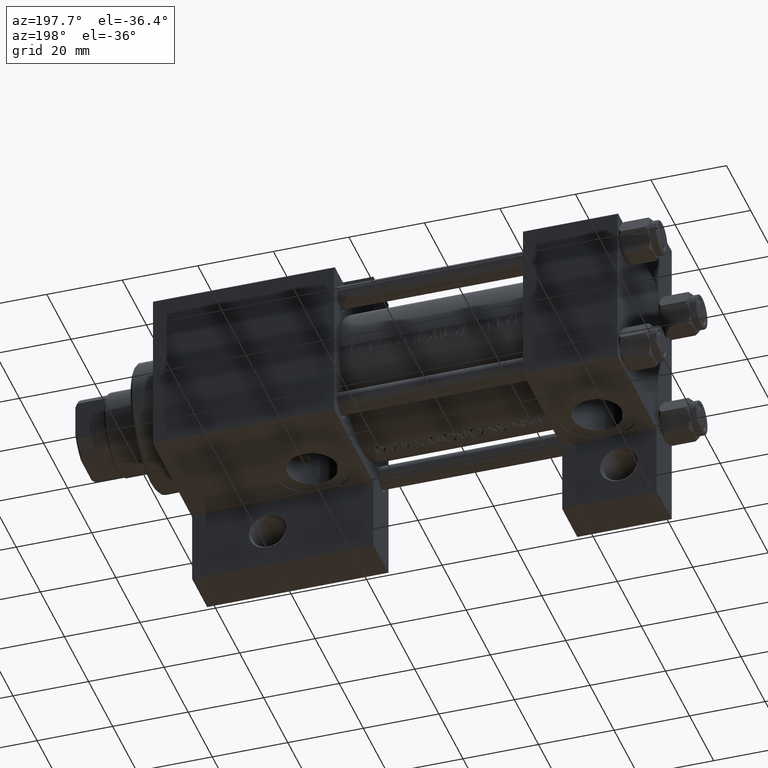
[diagram: clean part render]
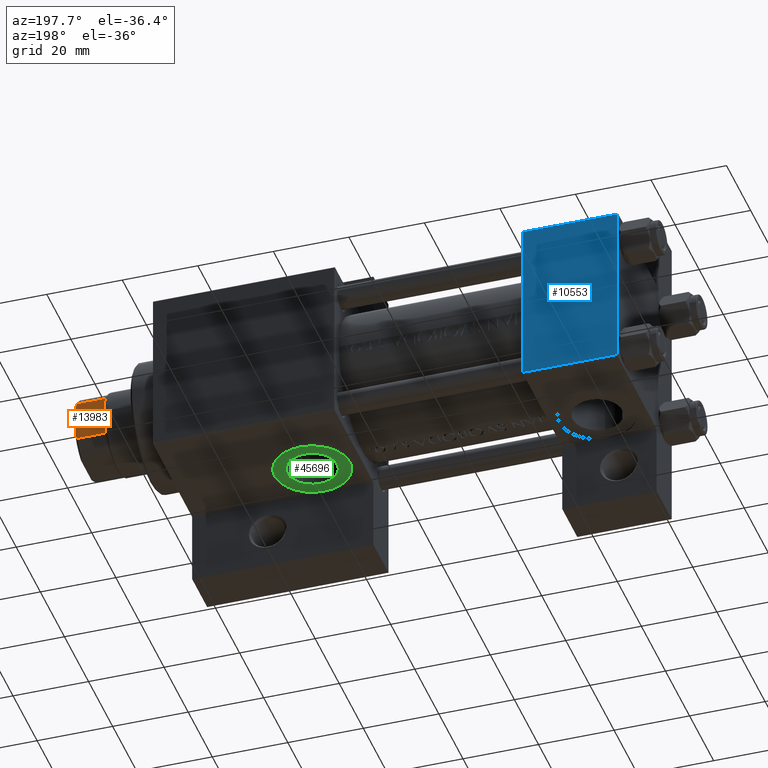
[diagram: same view with three faces highlighted in distinct colors, each labeled with its STEP entity id]
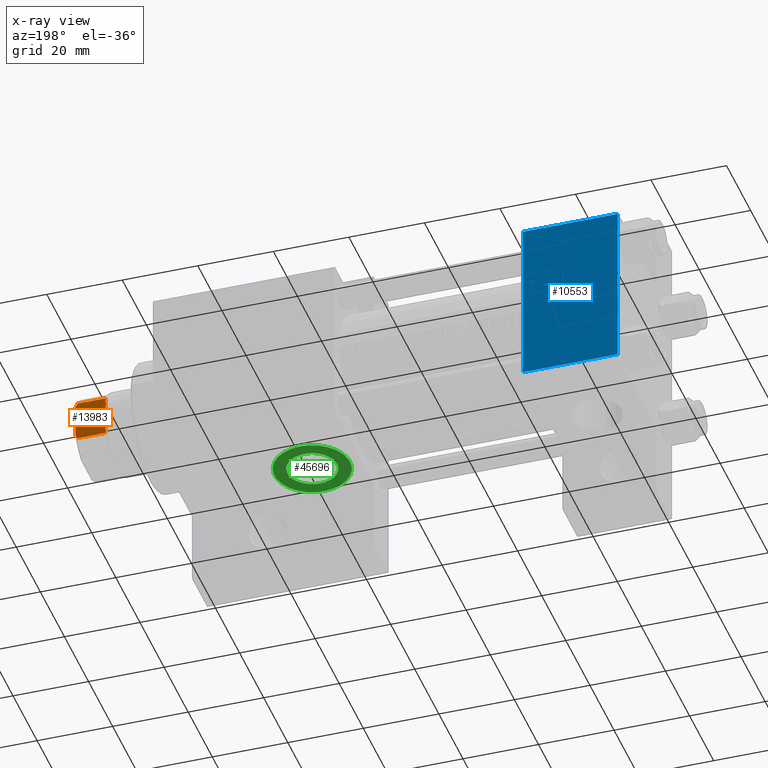
[diagram: x-ray of the same camera — body ghosted, the three highlighted faces saturated]
A machine part, auxiliary view with three faces highlighted in distinct colors.
The next image is the same camera in x-ray (body ghosted, the three faces saturated) — at least one of them is partly hidden behind the body in this view.
Their STEP definitions:

[orange] entity #13983 — the highlighted planar face has unit normal (0, -1, -0).
#35 = B_SPLINE_CURVE_WITH_KNOTS ( 'NONE', 3,
 ( #7351, #15257, #26555, #8043 ),
 .UNSPECIFIED., .F., .F.,
 ( 4, 4 ),
 ( 0.000000000000000000, 0.001162453897363206236 ),
 .UNSPECIFIED. ) ;
#1717 = VERTEX_POINT ( 'NONE', #39388 ) ;
#2069 = EDGE_CURVE ( 'NONE', #16666, #39811, #35, .T. ) ;
#4023 = CARTESIAN_POINT ( 'NONE',  ( -9.000000000000001776, -4.714305797500246697, 122.8450817439748448 ) ) ;
#4929 = DIRECTION ( 'NONE',  ( -0.000000000000000000, -0.000000000000000000, 1.000000000000000000 ) ) ;
#5512 = EDGE_CURVE ( 'NONE', #17751, #1717, #45784, .T. ) ;
#6062 = CARTESIAN_POINT ( 'NONE',  ( -9.000000000000003553, -4.358898943540665094, 123.0000000000000000 ) ) ;
#7351 = CARTESIAN_POINT ( 'NONE',  ( -9.000000000000003553, 4.358898943540662430, 123.0000000000000000 ) ) ;
#7627 = CARTESIAN_POINT ( 'NONE',  ( -9.000000000000000000, -5.063687070142446345, 122.6775166608139216 ) ) ;
#8043 = CARTESIAN_POINT ( 'NONE',  ( -8.999999999999996447, 5.408326913195991459, 122.5000000000000000 ) ) ;
#10753 = DIRECTION ( 'NONE',  ( 1.000000000000000000, 9.637352644315595243E-17, -0.000000000000000000 ) ) ;
#10995 = CARTESIAN_POINT ( 'NONE',  ( -9.000000000000003553, 8.999999999999998224, 123.0000000000000000 ) ) ;
#13983 = ADVANCED_FACE ( 'NONE', ( #40554 ), #15069, .F. ) ;
#15053 = LINE ( 'NONE', #37877, #16254 ) ;
#15069 = PLANE ( 'NONE',  #19011 ) ;
#15257 = CARTESIAN_POINT ( 'NONE',  ( -9.000000000000001776, 4.714305797500244921, 122.8450817439748448 ) ) ;
#15419 = VECTOR ( 'NONE', #45671, 1000.000000000000000 ) ;
#16254 = VECTOR ( 'NONE', #4929, 1000.000000000000000 ) ;
#16666 = VERTEX_POINT ( 'NONE', #31450 ) ;
#17751 = VERTEX_POINT ( 'NONE', #43250 ) ;
#19011 = AXIS2_PLACEMENT_3D ( 'NONE', #10995, #10753, #36940 ) ;
#19812 = CARTESIAN_POINT ( 'NONE',  ( -9.000000000000003553, 8.999999999999998224, 115.0000000000000000 ) ) ;
#22290 = CARTESIAN_POINT ( 'NONE',  ( -9.000000000000003553, -4.358898943540665094, 123.0000000000000000 ) ) ;
#23254 = VERTEX_POINT ( 'NONE', #6062 ) ;
#23969 = ORIENTED_EDGE ( 'NONE', *, *, #26872, .T. ) ;
#24072 = CARTESIAN_POINT ( 'NONE',  ( -9.000000000000000000, -5.408326913195987018, 122.5000000000000000 ) ) ;
#24764 = VECTOR ( 'NONE', #28666, 1000.000000000000000 ) ;
#24820 = ORIENTED_EDGE ( 'NONE', *, *, #27604, .T. ) ;
#24994 = ORIENTED_EDGE ( 'NONE', *, *, #2069, .T. ) ;
#25290 = LINE ( 'NONE', #32745, #24764 ) ;
#25607 = EDGE_CURVE ( 'NONE', #17751, #39811, #46154, .T. ) ;
#26469 = ORIENTED_EDGE ( 'NONE', *, *, #38676, .F. ) ;
#26555 = CARTESIAN_POINT ( 'NONE',  ( -9.000000000000003553, 5.063687070142450786, 122.6775166608139216 ) ) ;
#26788 = DIRECTION ( 'NONE',  ( 9.637352644315595243E-17, -1.000000000000000000, 0.000000000000000000 ) ) ;
#26872 = EDGE_CURVE ( 'NONE', #1717, #31154, #15053, .T. ) ;
#27604 = EDGE_CURVE ( 'NONE', #31154, #23254, #46264, .T. ) ;
#28666 = DIRECTION ( 'NONE',  ( 9.637352644315595243E-17, -1.000000000000000000, 0.000000000000000000 ) ) ;
#31154 = VERTEX_POINT ( 'NONE', #24072 ) ;
#31450 = CARTESIAN_POINT ( 'NONE',  ( -9.000000000000003553, 4.358898943540662430, 123.0000000000000000 ) ) ;
#31947 = CARTESIAN_POINT ( 'NONE',  ( -8.999999999999996447, 5.408326913195991459, -0.001000000000001000089 ) ) ;
#32745 = CARTESIAN_POINT ( 'NONE',  ( -9.000000000000003553, 8.999999999999998224, 123.0000000000000000 ) ) ;
#35117 = CARTESIAN_POINT ( 'NONE',  ( -8.999999999999996447, 5.408326913195991459, 122.5000000000000000 ) ) ;
#36940 = DIRECTION ( 'NONE',  ( -9.637352644315595243E-17, 1.000000000000000000, 0.000000000000000000 ) ) ;
#37877 = CARTESIAN_POINT ( 'NONE',  ( -9.000000000000000000, -5.408326913195987018, -0.001000000000001000089 ) ) ;
#38676 = EDGE_CURVE ( 'NONE', #16666, #23254, #25290, .T. ) ;
#39388 = CARTESIAN_POINT ( 'NONE',  ( -9.000000000000000000, -5.408326913195987018, 115.0000000000000284 ) ) ;
#39811 = VERTEX_POINT ( 'NONE', #35117 ) ;
#39863 = CARTESIAN_POINT ( 'NONE',  ( -9.000000000000000000, -5.408326913195987018, 122.5000000000000000 ) ) ;
#40554 = FACE_OUTER_BOUND ( 'NONE', #44635, .T. ) ;
#40934 = ORIENTED_EDGE ( 'NONE', *, *, #25607, .F. ) ;
#43250 = CARTESIAN_POINT ( 'NONE',  ( -8.999999999999996447, 5.408326913195988794, 115.0000000000000284 ) ) ;
#44635 = EDGE_LOOP ( 'NONE', ( #23969, #24820, #26469, #24994, #40934, #45812 ) ) ;
#45671 = DIRECTION ( 'NONE',  ( -0.000000000000000000, -0.000000000000000000, 1.000000000000000000 ) ) ;
#45784 = LINE ( 'NONE', #19812, #47297 ) ;
#45812 = ORIENTED_EDGE ( 'NONE', *, *, #5512, .T. ) ;
#46154 = LINE ( 'NONE', #31947, #15419 ) ;
#46264 = B_SPLINE_CURVE_WITH_KNOTS ( 'NONE', 3,
 ( #39863, #7627, #4023, #22290 ),
 .UNSPECIFIED., .F., .F.,
 ( 4, 4 ),
 ( 0.000000000000000000, 0.001162453897363199297 ),
 .UNSPECIFIED. ) ;
#47297 = VECTOR ( 'NONE', #26788, 1000.000000000000000 ) ;

[blue] entity #10553 — the highlighted planar face has unit normal (0, -1, -0).
#591 = LINE ( 'NONE', #44372, #3796 ) ;
#822 = DIRECTION ( 'NONE',  ( 1.000000000000000000, 0.000000000000000000, 0.000000000000000000 ) ) ;
#1086 = EDGE_CURVE ( 'NONE', #44265, #34336, #12322, .T. ) ;
#2960 = ORIENTED_EDGE ( 'NONE', *, *, #3276, .T. ) ;
#3276 = EDGE_CURVE ( 'NONE', #34336, #9219, #591, .T. ) ;
#3796 = VECTOR ( 'NONE', #822, 1000.000000000000000 ) ;
#4221 = CARTESIAN_POINT ( 'NONE',  ( 0.000000000000000000, 21.99999999999999289, 22.50000000000000355 ) ) ;
#4421 = VERTEX_POINT ( 'NONE', #20995 ) ;
#5362 = ORIENTED_EDGE ( 'NONE', *, *, #22065, .T. ) ;
#5987 = DIRECTION ( 'NONE',  ( 0.000000000000000000, 1.000000000000000000, 7.709882115452476934E-17 ) ) ;
#6357 = LINE ( 'NONE', #32305, #13229 ) ;
#6469 = CARTESIAN_POINT ( 'NONE',  ( 25.00000000000000000, 22.50000000000000000, 22.50000000000000355 ) ) ;
#6528 = EDGE_LOOP ( 'NONE', ( #19882, #2960, #18666, #5362 ) ) ;
#8952 = DIRECTION ( 'NONE',  ( 0.000000000000000000, -1.000000000000000000, -7.709882115452476934E-17 ) ) ;
#9219 = VERTEX_POINT ( 'NONE', #19499 ) ;
#10553 = ADVANCED_FACE ( 'NONE', ( #39406 ), #10779, .F. ) ;
#10779 = PLANE ( 'NONE',  #42692 ) ;
#12322 = LINE ( 'NONE', #41657, #27503 ) ;
#13229 = VECTOR ( 'NONE', #21023, 1000.000000000000000 ) ;
#18666 = ORIENTED_EDGE ( 'NONE', *, *, #41960, .F. ) ;
#18895 = DIRECTION ( 'NONE',  ( -1.000000000000000000, 0.000000000000000000, 0.000000000000000000 ) ) ;
#19499 = CARTESIAN_POINT ( 'NONE',  ( 25.00000000000000000, -21.99999999999997868, 22.50000000000000000 ) ) ;
#19882 = ORIENTED_EDGE ( 'NONE', *, *, #1086, .T. ) ;
#20995 = CARTESIAN_POINT ( 'NONE',  ( 25.00000000000000000, 21.99999999999999289, 22.50000000000000355 ) ) ;
#21023 = DIRECTION ( 'NONE',  ( 0.000000000000000000, -1.000000000000000000, -7.709882115452476934E-17 ) ) ;
#21134 = DIRECTION ( 'NONE',  ( 0.000000000000000000, 7.709882115452476934E-17, -1.000000000000000000 ) ) ;
#22065 = EDGE_CURVE ( 'NONE', #4421, #44265, #40768, .T. ) ;
#27503 = VECTOR ( 'NONE', #8952, 1000.000000000000000 ) ;
#27617 = VECTOR ( 'NONE', #18895, 1000.000000000000000 ) ;
#28024 = CARTESIAN_POINT ( 'NONE',  ( 0.000000000000000000, 21.99999999999999289, 22.50000000000000355 ) ) ;
#32305 = CARTESIAN_POINT ( 'NONE',  ( 25.00000000000000000, 22.50000000000000000, 22.50000000000000355 ) ) ;
#34336 = VERTEX_POINT ( 'NONE', #36797 ) ;
#36797 = CARTESIAN_POINT ( 'NONE',  ( 0.000000000000000000, -21.99999999999997868, 22.50000000000000000 ) ) ;
#39406 = FACE_OUTER_BOUND ( 'NONE', #6528, .T. ) ;
#40768 = LINE ( 'NONE', #4221, #27617 ) ;
#41657 = CARTESIAN_POINT ( 'NONE',  ( 0.000000000000000000, 22.50000000000000000, 22.50000000000000355 ) ) ;
#41960 = EDGE_CURVE ( 'NONE', #4421, #9219, #6357, .T. ) ;
#42692 = AXIS2_PLACEMENT_3D ( 'NONE', #6469, #21134, #5987 ) ;
#44265 = VERTEX_POINT ( 'NONE', #28024 ) ;
#44372 = CARTESIAN_POINT ( 'NONE',  ( 25.00000000000000000, -21.99999999999999289, 22.50000000000000000 ) ) ;

[green] entity #45696 — the highlighted planar face has unit normal (0, 0, -1).
#155 = AXIS2_PLACEMENT_3D ( 'NONE', #41986, #39093, #6160 ) ;
#1475 = CARTESIAN_POINT ( 'NONE',  ( 88.00000000000001421, 22.30000000000000426, 0.000000000000000000 ) ) ;
#3728 = DIRECTION ( 'NONE',  ( 0.000000000000000000, 1.000000000000000000, 0.000000000000000000 ) ) ;
#5559 = FACE_BOUND ( 'NONE', #38863, .T. ) ;
#6153 = CARTESIAN_POINT ( 'NONE',  ( 88.00000000000001421, 22.30000000000000426, 0.000000000000000000 ) ) ;
#6160 = DIRECTION ( 'NONE',  ( 0.000000000000000000, 0.000000000000000000, 1.000000000000000000 ) ) ;
#9230 = VERTEX_POINT ( 'NONE', #44745 ) ;
#10697 = DIRECTION ( 'NONE',  ( 0.000000000000000000, 0.000000000000000000, 1.000000000000000000 ) ) ;
#14602 = EDGE_CURVE ( 'NONE', #9230, #39154, #24392, .T. ) ;
#15135 = VERTEX_POINT ( 'NONE', #38850 ) ;
#16381 = PLANE ( 'NONE',  #36362 ) ;
#16557 = CARTESIAN_POINT ( 'NONE',  ( 88.00000000000001421, 22.30000000000000426, 6.580000000000002736 ) ) ;
#16719 = AXIS2_PLACEMENT_3D ( 'NONE', #31554, #42147, #20990 ) ;
#16973 = CARTESIAN_POINT ( 'NONE',  ( 88.00000000000001421, 22.30000000000000426, 9.999999999999994671 ) ) ;
#16984 = EDGE_LOOP ( 'NONE', ( #21274, #36773 ) ) ;
#17454 = DIRECTION ( 'NONE',  ( 0.000000000000000000, 0.000000000000000000, 1.000000000000000000 ) ) ;
#20990 = DIRECTION ( 'NONE',  ( 0.000000000000000000, 0.000000000000000000, 1.000000000000000000 ) ) ;
#21274 = ORIENTED_EDGE ( 'NONE', *, *, #29856, .T. ) ;
#21767 = CARTESIAN_POINT ( 'NONE',  ( 88.00000000000001421, 22.30000000000000426, 0.000000000000000000 ) ) ;
#23975 = CIRCLE ( 'NONE', #43207, 9.999999999999994671 ) ;
#24392 = CIRCLE ( 'NONE', #16719, 9.999999999999994671 ) ;
#25461 = CIRCLE ( 'NONE', #26202, 6.580000000000002736 ) ;
#26202 = AXIS2_PLACEMENT_3D ( 'NONE', #21767, #3728, #10697 ) ;
#26499 = ORIENTED_EDGE ( 'NONE', *, *, #26973, .F. ) ;
#26973 = EDGE_CURVE ( 'NONE', #27554, #15135, #25461, .T. ) ;
#27554 = VERTEX_POINT ( 'NONE', #16557 ) ;
#27943 = EDGE_CURVE ( 'NONE', #15135, #27554, #39328, .T. ) ;
#29856 = EDGE_CURVE ( 'NONE', #39154, #9230, #23975, .T. ) ;
#30327 = DIRECTION ( 'NONE',  ( 0.000000000000000000, 1.000000000000000000, 0.000000000000000000 ) ) ;
#31271 = FACE_OUTER_BOUND ( 'NONE', #16984, .T. ) ;
#31554 = CARTESIAN_POINT ( 'NONE',  ( 88.00000000000001421, 22.30000000000000426, 0.000000000000000000 ) ) ;
#36362 = AXIS2_PLACEMENT_3D ( 'NONE', #1475, #30327, #41859 ) ;
#36773 = ORIENTED_EDGE ( 'NONE', *, *, #14602, .T. ) ;
#38850 = CARTESIAN_POINT ( 'NONE',  ( 88.00000000000001421, 22.30000000000000426, -6.580000000000002736 ) ) ;
#38863 = EDGE_LOOP ( 'NONE', ( #26499, #46131 ) ) ;
#39093 = DIRECTION ( 'NONE',  ( 0.000000000000000000, 1.000000000000000000, 0.000000000000000000 ) ) ;
#39154 = VERTEX_POINT ( 'NONE', #16973 ) ;
#39328 = CIRCLE ( 'NONE', #155, 6.580000000000002736 ) ;
#41859 = DIRECTION ( 'NONE',  ( 0.000000000000000000, -0.000000000000000000, 1.000000000000000000 ) ) ;
#41986 = CARTESIAN_POINT ( 'NONE',  ( 88.00000000000001421, 22.30000000000000426, 0.000000000000000000 ) ) ;
#42147 = DIRECTION ( 'NONE',  ( 0.000000000000000000, 1.000000000000000000, 0.000000000000000000 ) ) ;
#43207 = AXIS2_PLACEMENT_3D ( 'NONE', #6153, #45839, #17454 ) ;
#44745 = CARTESIAN_POINT ( 'NONE',  ( 88.00000000000001421, 22.30000000000000426, -9.999999999999994671 ) ) ;
#45696 = ADVANCED_FACE ( 'NONE', ( #5559, #31271 ), #16381, .T. ) ;
#45839 = DIRECTION ( 'NONE',  ( 0.000000000000000000, 1.000000000000000000, 0.000000000000000000 ) ) ;
#46131 = ORIENTED_EDGE ( 'NONE', *, *, #27943, .F. ) ;